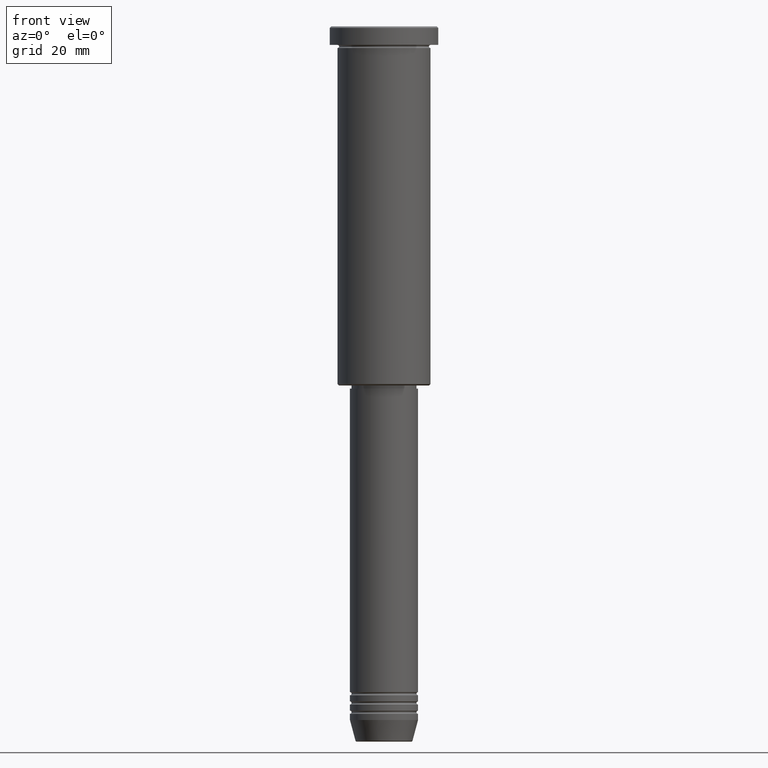
[diagram: clean part render]
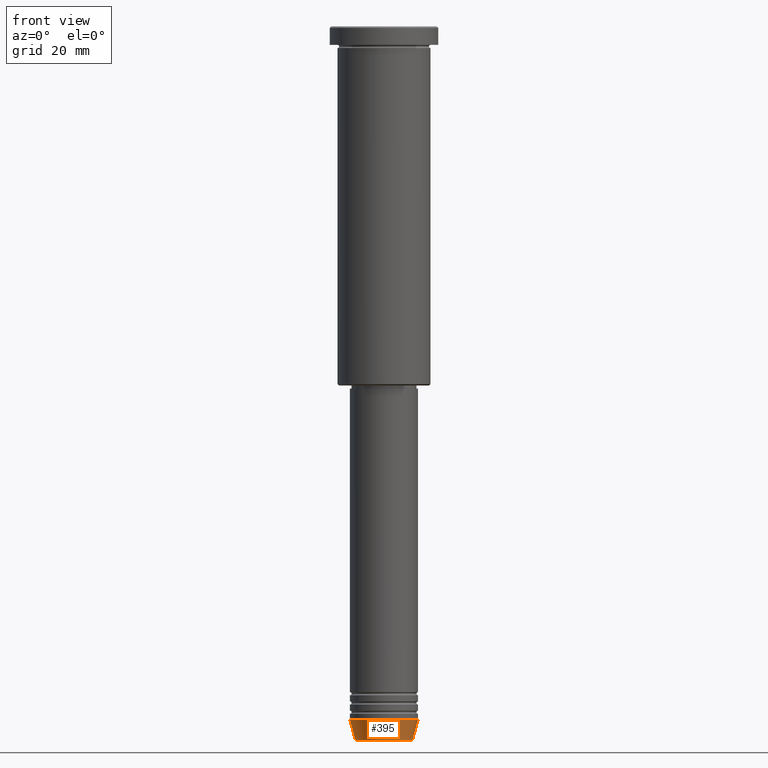
[diagram: same view with one face highlighted and labeled with its STEP entity id]
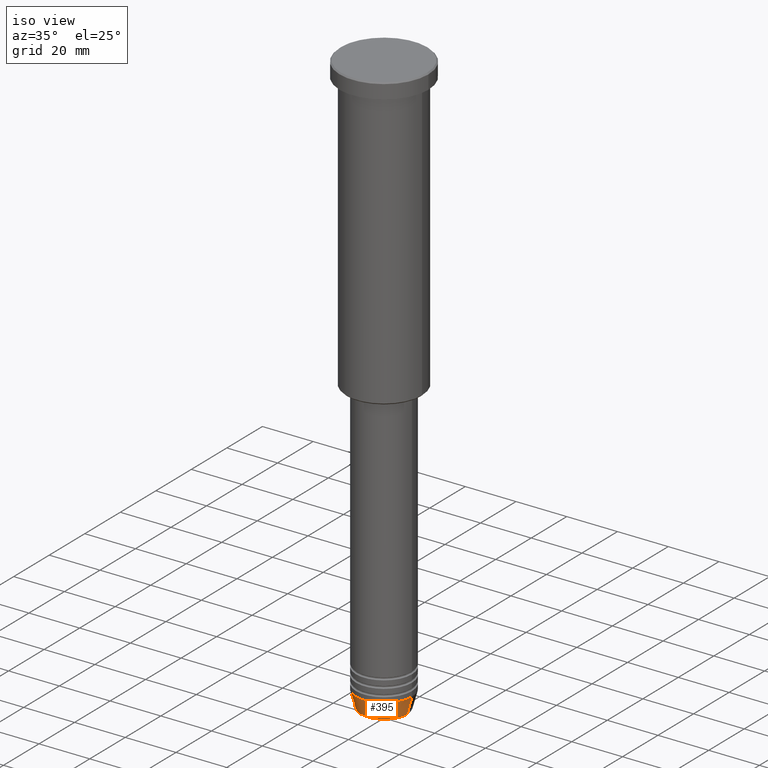
[diagram: same view with one face highlighted and labeled with its STEP entity id]
A machine part, front view. The second image highlights one B-rep face of the part: STEP entity #395.
A second angle (iso view) of the same face is appended — the face is thin or edge-on in the first view.
In plain terms, the highlighted conical surface has half-angle 15 deg.
Its self-contained STEP definition (entity closure, byte-faithful):
#83 = VECTOR ( 'NONE', #760, 1000.000000000000000 ) ;
#111 = VERTEX_POINT ( 'NONE', #163 ) ;
#139 = VECTOR ( 'NONE', #385, 1000.000000000000000 ) ;
#163 = CARTESIAN_POINT ( 'NONE',  ( -11.00000000000000000, 1.347111479062088405E-15, -224.0000000000000000 ) ) ;
#171 = DIRECTION ( 'NONE',  ( 1.000000000000000000, 0.000000000000000000, 0.000000000000000000 ) ) ;
#172 = EDGE_CURVE ( 'NONE', #1036, #111, #1017, .T. ) ;
#192 = DIRECTION ( 'NONE',  ( 1.000000000000000000, 0.000000000000000000, 0.000000000000000000 ) ) ;
#197 = CARTESIAN_POINT ( 'NONE',  ( 11.00000000000000000, 0.000000000000000000, -224.0000000000000000 ) ) ;
#204 = CARTESIAN_POINT ( 'NONE',  ( -9.223655072137201927, 1.238341722557647991E-15, -230.6294095225512422 ) ) ;
#220 = DIRECTION ( 'NONE',  ( -0.000000000000000000, -0.000000000000000000, 1.000000000000000000 ) ) ;
#285 = EDGE_CURVE ( 'NONE', #818, #742, #746, .T. ) ;
#315 = ORIENTED_EDGE ( 'NONE', *, *, #934, .F. ) ;
#319 = DIRECTION ( 'NONE',  ( 1.000000000000000000, 0.000000000000000000, 0.000000000000000000 ) ) ;
#363 = DIRECTION ( 'NONE',  ( -0.000000000000000000, -0.000000000000000000, 1.000000000000000000 ) ) ;
#385 = DIRECTION ( 'NONE',  ( 0.2588190451025213501, 0.000000000000000000, 0.9659258262890680902 ) ) ;
#395 = ADVANCED_FACE ( 'NONE', ( #688 ), #1075, .T. ) ;
#406 = ORIENTED_EDGE ( 'NONE', *, *, #285, .T. ) ;
#489 = CIRCLE ( 'NONE', #1152, 11.00000000000000000 ) ;
#561 = AXIS2_PLACEMENT_3D ( 'NONE', #1042, #220, #319 ) ;
#605 = AXIS2_PLACEMENT_3D ( 'NONE', #844, #861, #192 ) ;
#615 = EDGE_LOOP ( 'NONE', ( #650, #967, #406, #315 ) ) ;
#650 = ORIENTED_EDGE ( 'NONE', *, *, #172, .F. ) ;
#688 = FACE_OUTER_BOUND ( 'NONE', #615, .T. ) ;
#699 = CARTESIAN_POINT ( 'NONE',  ( 11.00000000000000000, 0.000000000000000000, -224.0000000000000000 ) ) ;
#742 = VERTEX_POINT ( 'NONE', #699 ) ;
#746 = LINE ( 'NONE', #197, #139 ) ;
#760 = DIRECTION ( 'NONE',  ( -0.2588190451025213501, 3.169619151431772337E-17, 0.9659258262890680902 ) ) ;
#818 = VERTEX_POINT ( 'NONE', #1159 ) ;
#844 = CARTESIAN_POINT ( 'NONE',  ( 0.000000000000000000, 0.000000000000000000, -230.6294095225512422 ) ) ;
#854 = CIRCLE ( 'NONE', #605, 9.223655072137201927 ) ;
#855 = CARTESIAN_POINT ( 'NONE',  ( -11.00000000000000000, 1.347111479062088405E-15, -224.0000000000000000 ) ) ;
#861 = DIRECTION ( 'NONE',  ( -0.000000000000000000, -0.000000000000000000, 1.000000000000000000 ) ) ;
#905 = CARTESIAN_POINT ( 'NONE',  ( 0.000000000000000000, 0.000000000000000000, -224.0000000000000000 ) ) ;
#934 = EDGE_CURVE ( 'NONE', #111, #742, #489, .T. ) ;
#967 = ORIENTED_EDGE ( 'NONE', *, *, #1133, .T. ) ;
#1017 = LINE ( 'NONE', #855, #83 ) ;
#1036 = VERTEX_POINT ( 'NONE', #204 ) ;
#1042 = CARTESIAN_POINT ( 'NONE',  ( 0.000000000000000000, 0.000000000000000000, -224.0000000000000000 ) ) ;
#1075 = CONICAL_SURFACE ( 'NONE', #561, 11.00000000000000000, 0.2617993877991500740 ) ;
#1133 = EDGE_CURVE ( 'NONE', #1036, #818, #854, .T. ) ;
#1152 = AXIS2_PLACEMENT_3D ( 'NONE', #905, #363, #171 ) ;
#1159 = CARTESIAN_POINT ( 'NONE',  ( 9.223655072137201927, 0.000000000000000000, -230.6294095225512422 ) ) ;